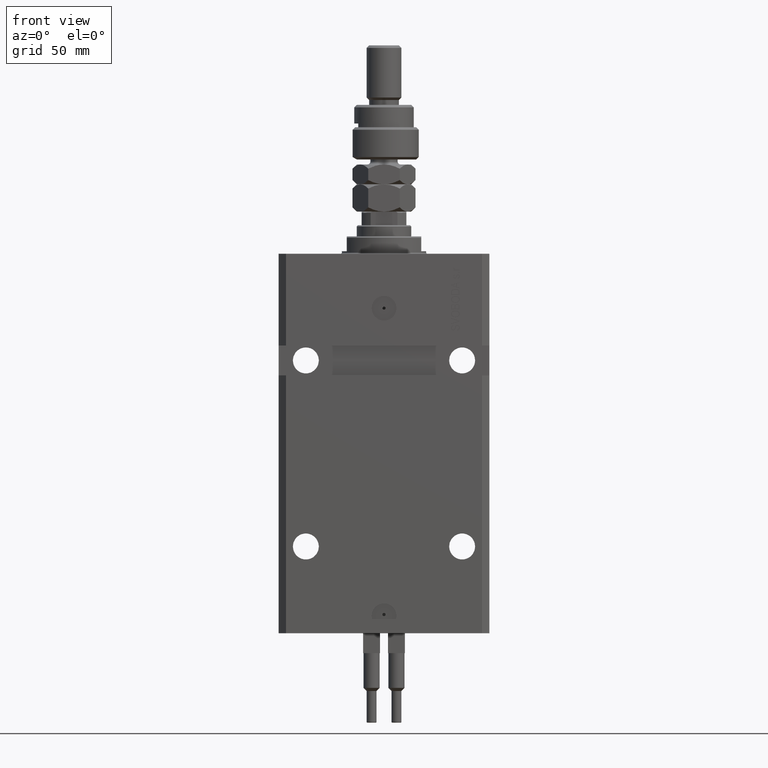
[diagram: clean part render]
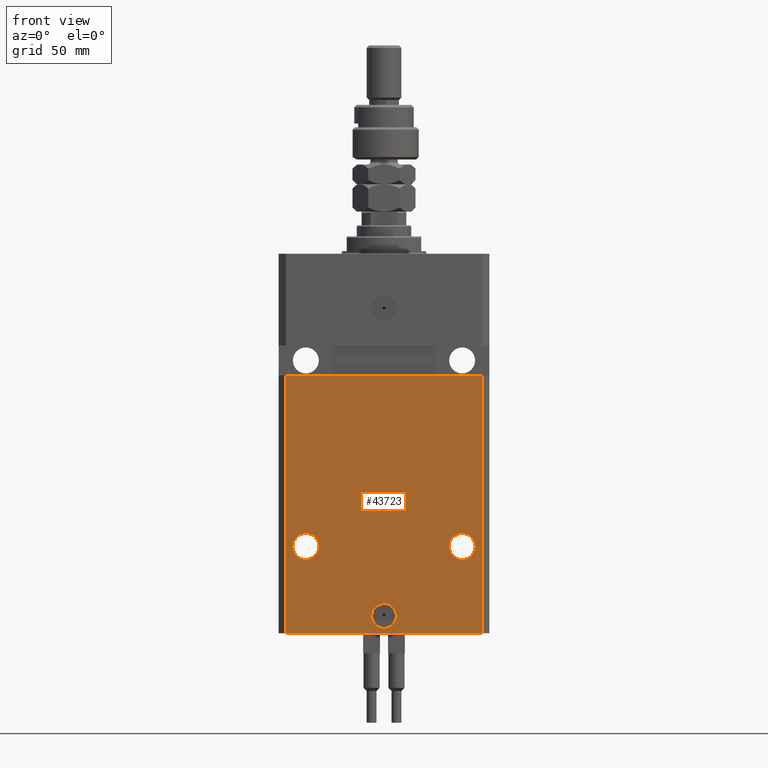
[diagram: same view with one face highlighted and labeled with its STEP entity id]
A machine part, front view. The second image highlights one B-rep face of the part: STEP entity #43723.
In plain terms, the highlighted planar face has unit normal (0, -1, 0).
Its self-contained STEP definition (entity closure, byte-faithful):
#325 = PLANE ( 'NONE',  #23602 ) ;
#601 = CIRCLE ( 'NONE', #46559, 5.249999999999997335 ) ;
#701 = CARTESIAN_POINT ( 'NONE',  ( -39.50000000000000711, -31.50000000000000000, -153.0000000000000000 ) ) ;
#1150 = DIRECTION ( 'NONE',  ( 0.000000000000000000, 0.000000000000000000, 1.000000000000000000 ) ) ;
#2344 = VERTEX_POINT ( 'NONE', #7515 ) ;
#2432 = VECTOR ( 'NONE', #16662, 1000.000000000000000 ) ;
#3358 = DIRECTION ( 'NONE',  ( 1.176083712526788232E-16, -1.000000000000000000, 0.000000000000000000 ) ) ;
#3535 = CIRCLE ( 'NONE', #24373, 5.000000000000006217 ) ;
#3887 = CARTESIAN_POINT ( 'NONE',  ( 0.000000000000000000, -31.50000000000000000, -146.0000000000000000 ) ) ;
#4005 = DIRECTION ( 'NONE',  ( 0.000000000000000000, -1.000000000000000000, 0.000000000000000000 ) ) ;
#4883 = LINE ( 'NONE', #21598, #27234 ) ;
#5742 = VERTEX_POINT ( 'NONE', #28052 ) ;
#6009 = VERTEX_POINT ( 'NONE', #21949 ) ;
#6529 = EDGE_LOOP ( 'NONE', ( #12879, #18889 ) ) ;
#7277 = CARTESIAN_POINT ( 'NONE',  ( -31.50000000000001421, -31.50000000000000711, -118.0000000000000000 ) ) ;
#7515 = CARTESIAN_POINT ( 'NONE',  ( -39.50000000000000000, -31.50000000000000711, -48.99999999999999289 ) ) ;
#10369 = VERTEX_POINT ( 'NONE', #43644 ) ;
#12236 = DIRECTION ( 'NONE',  ( 1.000000000000000000, 0.000000000000000000, 0.000000000000000000 ) ) ;
#12879 = ORIENTED_EDGE ( 'NONE', *, *, #37729, .F. ) ;
#14930 = VERTEX_POINT ( 'NONE', #46984 ) ;
#15523 = EDGE_CURVE ( 'NONE', #5742, #2344, #32341, .T. ) ;
#15587 = VERTEX_POINT ( 'NONE', #21608 ) ;
#16655 = CIRCLE ( 'NONE', #38348, 5.249999999999997335 ) ;
#16662 = DIRECTION ( 'NONE',  ( 0.000000000000000000, 0.000000000000000000, 1.000000000000000000 ) ) ;
#16694 = CARTESIAN_POINT ( 'NONE',  ( -42.50000000000001421, -31.50000000000000711, -48.99999999999999289 ) ) ;
#16797 = DIRECTION ( 'NONE',  ( 0.000000000000000000, -0.000000000000000000, -1.000000000000000000 ) ) ;
#18676 = ORIENTED_EDGE ( 'NONE', *, *, #47913, .F. ) ;
#18889 = ORIENTED_EDGE ( 'NONE', *, *, #25021, .F. ) ;
#19060 = ORIENTED_EDGE ( 'NONE', *, *, #23425, .T. ) ;
#19062 = EDGE_LOOP ( 'NONE', ( #18676, #45543 ) ) ;
#20218 = FACE_BOUND ( 'NONE', #39406, .T. ) ;
#20666 = VERTEX_POINT ( 'NONE', #50097 ) ;
#20712 = FACE_OUTER_BOUND ( 'NONE', #31146, .T. ) ;
#21526 = AXIS2_PLACEMENT_3D ( 'NONE', #35523, #50475, #23238 ) ;
#21598 = CARTESIAN_POINT ( 'NONE',  ( -39.50000000000000711, -31.50000000000000000, -153.0000000000000000 ) ) ;
#21608 = CARTESIAN_POINT ( 'NONE',  ( 39.50000000000000711, -31.50000000000000000, -153.0000000000000000 ) ) ;
#21949 = CARTESIAN_POINT ( 'NONE',  ( -5.000000000000006217, -31.50000000000000000, -146.0000000000000000 ) ) ;
#23148 = CARTESIAN_POINT ( 'NONE',  ( 5.000000000000006217, -31.50000000000000000, -146.0000000000000000 ) ) ;
#23238 = DIRECTION ( 'NONE',  ( 1.000000000000000000, 0.000000000000000000, 0.000000000000000000 ) ) ;
#23425 = EDGE_CURVE ( 'NONE', #5742, #15587, #4883, .T. ) ;
#23602 = AXIS2_PLACEMENT_3D ( 'NONE', #36665, #4005, #16797 ) ;
#24241 = DIRECTION ( 'NONE',  ( -1.000000000000000000, 0.000000000000000000, 0.000000000000000000 ) ) ;
#24373 = AXIS2_PLACEMENT_3D ( 'NONE', #3887, #28439, #12236 ) ;
#24485 = CARTESIAN_POINT ( 'NONE',  ( 26.25000000000001776, -31.49999999999999289, -118.0000000000000000 ) ) ;
#25021 = EDGE_CURVE ( 'NONE', #30817, #10369, #601, .T. ) ;
#25817 = AXIS2_PLACEMENT_3D ( 'NONE', #47685, #30920, #46644 ) ;
#27221 = VERTEX_POINT ( 'NONE', #43911 ) ;
#27234 = VECTOR ( 'NONE', #45681, 1000.000000000000000 ) ;
#27708 = AXIS2_PLACEMENT_3D ( 'NONE', #39556, #44008, #44530 ) ;
#28040 = FACE_BOUND ( 'NONE', #6529, .T. ) ;
#28052 = CARTESIAN_POINT ( 'NONE',  ( -39.50000000000000711, -31.50000000000000000, -153.0000000000000000 ) ) ;
#28074 = ORIENTED_EDGE ( 'NONE', *, *, #39453, .T. ) ;
#28439 = DIRECTION ( 'NONE',  ( 1.176083712526788232E-16, -1.000000000000000000, 0.000000000000000000 ) ) ;
#28869 = CARTESIAN_POINT ( 'NONE',  ( 39.50000000000000711, -31.50000000000000000, -153.0000000000000000 ) ) ;
#29275 = VECTOR ( 'NONE', #41019, 1000.000000000000000 ) ;
#30010 = CIRCLE ( 'NONE', #25817, 5.249999999999997335 ) ;
#30817 = VERTEX_POINT ( 'NONE', #24485 ) ;
#30920 = DIRECTION ( 'NONE',  ( 1.176083712526788232E-16, -1.000000000000000000, 0.000000000000000000 ) ) ;
#31146 = EDGE_LOOP ( 'NONE', ( #50355, #38353, #19060, #28074 ) ) ;
#32341 = LINE ( 'NONE', #701, #2432 ) ;
#32388 = CIRCLE ( 'NONE', #21526, 5.000000000000006217 ) ;
#33449 = EDGE_CURVE ( 'NONE', #20666, #27221, #16655, .T. ) ;
#33771 = VERTEX_POINT ( 'NONE', #23148 ) ;
#35523 = CARTESIAN_POINT ( 'NONE',  ( 0.000000000000000000, -31.50000000000000000, -146.0000000000000000 ) ) ;
#35554 = EDGE_CURVE ( 'NONE', #2344, #14930, #40496, .T. ) ;
#36158 = FACE_BOUND ( 'NONE', #19062, .T. ) ;
#36365 = DIRECTION ( 'NONE',  ( 1.000000000000000000, 0.000000000000000000, 0.000000000000000000 ) ) ;
#36665 = CARTESIAN_POINT ( 'NONE',  ( -39.50000000000000711, -31.50000000000000000, -153.0000000000000000 ) ) ;
#36894 = CIRCLE ( 'NONE', #27708, 5.249999999999997335 ) ;
#37394 = CARTESIAN_POINT ( 'NONE',  ( 31.50000000000001421, -31.49999999999999289, -118.0000000000000000 ) ) ;
#37729 = EDGE_CURVE ( 'NONE', #10369, #30817, #36894, .T. ) ;
#38348 = AXIS2_PLACEMENT_3D ( 'NONE', #7277, #3358, #24241 ) ;
#38353 = ORIENTED_EDGE ( 'NONE', *, *, #15523, .F. ) ;
#39406 = EDGE_LOOP ( 'NONE', ( #48876, #42624 ) ) ;
#39453 = EDGE_CURVE ( 'NONE', #15587, #14930, #45624, .T. ) ;
#39556 = CARTESIAN_POINT ( 'NONE',  ( 31.50000000000001421, -31.49999999999999289, -118.0000000000000000 ) ) ;
#40496 = LINE ( 'NONE', #16694, #29275 ) ;
#41019 = DIRECTION ( 'NONE',  ( 1.000000000000000000, 1.632680918566406054E-16, 1.632680918566406054E-16 ) ) ;
#41118 = VECTOR ( 'NONE', #1150, 1000.000000000000000 ) ;
#41998 = EDGE_CURVE ( 'NONE', #33771, #6009, #3535, .T. ) ;
#42624 = ORIENTED_EDGE ( 'NONE', *, *, #45258, .F. ) ;
#43644 = CARTESIAN_POINT ( 'NONE',  ( 36.75000000000001421, -31.49999999999999289, -118.0000000000000000 ) ) ;
#43723 = ADVANCED_FACE ( 'NONE', ( #20218, #28040, #36158, #20712 ), #325, .T. ) ;
#43911 = CARTESIAN_POINT ( 'NONE',  ( -26.25000000000001776, -31.50000000000000711, -118.0000000000000000 ) ) ;
#44008 = DIRECTION ( 'NONE',  ( 1.176083712526788232E-16, -1.000000000000000000, 0.000000000000000000 ) ) ;
#44245 = DIRECTION ( 'NONE',  ( 1.176083712526788232E-16, -1.000000000000000000, 0.000000000000000000 ) ) ;
#44530 = DIRECTION ( 'NONE',  ( 1.000000000000000000, 0.000000000000000000, 0.000000000000000000 ) ) ;
#45258 = EDGE_CURVE ( 'NONE', #6009, #33771, #32388, .T. ) ;
#45543 = ORIENTED_EDGE ( 'NONE', *, *, #33449, .F. ) ;
#45624 = LINE ( 'NONE', #28869, #41118 ) ;
#45681 = DIRECTION ( 'NONE',  ( 1.000000000000000000, 0.000000000000000000, 0.000000000000000000 ) ) ;
#46559 = AXIS2_PLACEMENT_3D ( 'NONE', #37394, #44245, #36365 ) ;
#46644 = DIRECTION ( 'NONE',  ( -1.000000000000000000, 0.000000000000000000, 0.000000000000000000 ) ) ;
#46984 = CARTESIAN_POINT ( 'NONE',  ( 39.50000000000000000, -31.49999999999999289, -48.99999999999997868 ) ) ;
#47685 = CARTESIAN_POINT ( 'NONE',  ( -31.50000000000001421, -31.50000000000000711, -118.0000000000000000 ) ) ;
#47913 = EDGE_CURVE ( 'NONE', #27221, #20666, #30010, .T. ) ;
#48876 = ORIENTED_EDGE ( 'NONE', *, *, #41998, .F. ) ;
#50097 = CARTESIAN_POINT ( 'NONE',  ( -36.75000000000001421, -31.50000000000000711, -118.0000000000000000 ) ) ;
#50355 = ORIENTED_EDGE ( 'NONE', *, *, #35554, .F. ) ;
#50475 = DIRECTION ( 'NONE',  ( 1.176083712526788232E-16, -1.000000000000000000, 0.000000000000000000 ) ) ;